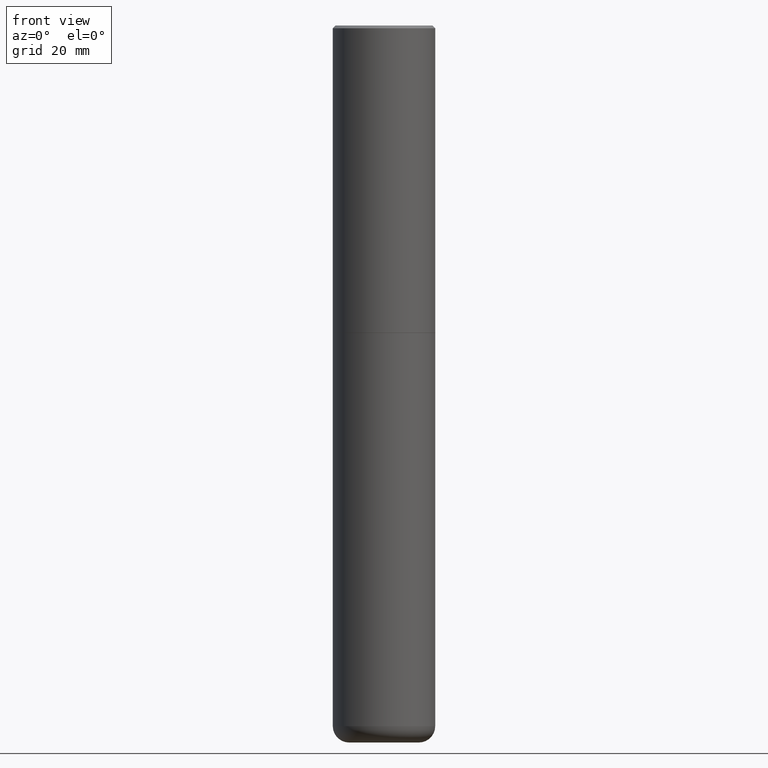
[diagram: clean part render]
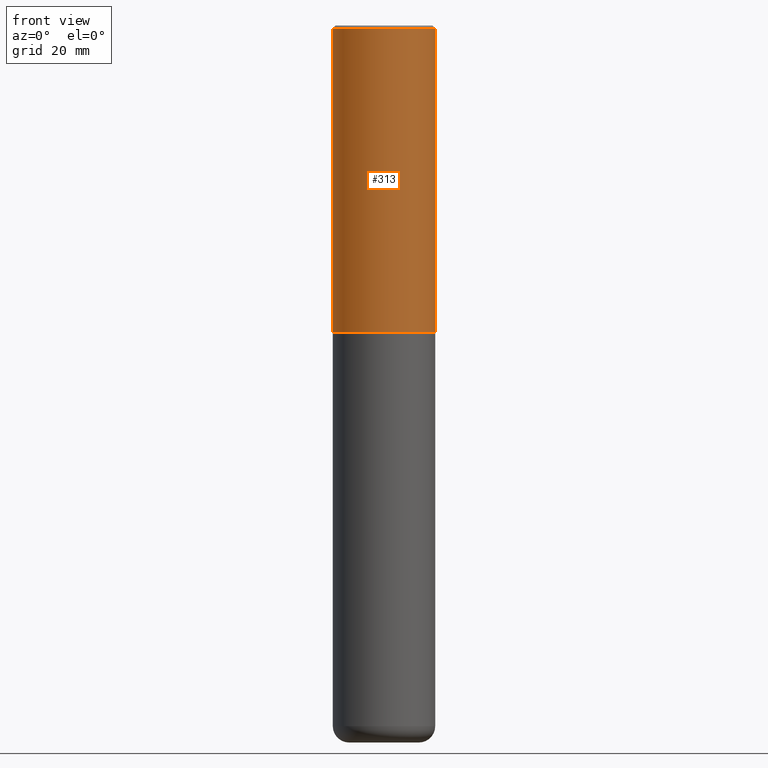
[diagram: same view with one face highlighted and labeled with its STEP entity id]
A machine part, front view. The second image highlights one B-rep face of the part: STEP entity #313.
In plain terms, the highlighted cylindrical surface (partial cylindrical patch) has radius 9.525 mm, axis along (-0, 0, 1).
Its self-contained STEP definition (entity closure, byte-faithful):
#7 = CIRCLE ( 'NONE', #214, 0.3750000000000001110 ) ;
#9 = EDGE_CURVE ( 'NONE', #363, #81, #156, .T. ) ;
#16 = DIRECTION ( 'NONE',  ( -2.445468806185136597E-29, 3.491481338843145583E-15, 1.000000000000000000 ) ) ;
#19 = VECTOR ( 'NONE', #87, 39.37007874015748143 ) ;
#24 = CYLINDRICAL_SURFACE ( 'NONE', #388, 0.3750000000000002220 ) ;
#38 = VERTEX_POINT ( 'NONE', #223 ) ;
#47 = LINE ( 'NONE', #283, #19 ) ;
#81 = VERTEX_POINT ( 'NONE', #340 ) ;
#87 = DIRECTION ( 'NONE',  ( -2.445468806185136877E-29, 3.491481338843145188E-15, 1.000000000000000000 ) ) ;
#97 = EDGE_CURVE ( 'NONE', #38, #159, #7, .T. ) ;
#102 = EDGE_CURVE ( 'NONE', #81, #159, #47, .T. ) ;
#118 = CARTESIAN_POINT ( 'NONE',  ( 4.890937612370294178E-31, -6.982962677686321191E-17, -0.02000000000000008715 ) ) ;
#122 = DIRECTION ( 'NONE',  ( 1.000000000000000000, -6.982962677686266711E-15, 4.876176775795935793E-29 ) ) ;
#123 = CARTESIAN_POINT ( 'NONE',  ( 5.499859345110371740E-29, -7.852341531058233864E-15, -2.249000000000000110 ) ) ;
#125 = DIRECTION ( 'NONE',  ( 1.000000000000000000, -6.982962677686267499E-15, 0.000000000000000000 ) ) ;
#156 = CIRCLE ( 'NONE', #310, 0.3750000000000002776 ) ;
#159 = VERTEX_POINT ( 'NONE', #198 ) ;
#160 = FACE_OUTER_BOUND ( 'NONE', #190, .T. ) ;
#180 = ORIENTED_EDGE ( 'NONE', *, *, #102, .T. ) ;
#186 = CARTESIAN_POINT ( 'NONE',  ( 0.000000000000000000, 0.000000000000000000, 0.000000000000000000 ) ) ;
#190 = EDGE_LOOP ( 'NONE', ( #253, #312, #180, #403 ) ) ;
#198 = CARTESIAN_POINT ( 'NONE',  ( 0.3750000000000001110, -2.642516375941188423E-15, -0.02000000000000008715 ) ) ;
#203 = LINE ( 'NONE', #206, #414 ) ;
#206 = CARTESIAN_POINT ( 'NONE',  ( -0.3750000000000002220, 2.664535259100377275E-15, -1.844600658845590719E-29 ) ) ;
#214 = AXIS2_PLACEMENT_3D ( 'NONE', #118, #250, #371 ) ;
#223 = CARTESIAN_POINT ( 'NONE',  ( -0.3750000000000001110, 2.548781377355487113E-15, -0.02000000000000008715 ) ) ;
#250 = DIRECTION ( 'NONE',  ( -2.445468806185136597E-29, 3.491481338843145583E-15, 1.000000000000000000 ) ) ;
#253 = ORIENTED_EDGE ( 'NONE', *, *, #392, .F. ) ;
#283 = CARTESIAN_POINT ( 'NONE',  ( 0.3750000000000002220, -2.618611004132351594E-15, 1.828566290923477043E-29 ) ) ;
#310 = AXIS2_PLACEMENT_3D ( 'NONE', #123, #16, #125 ) ;
#312 = ORIENTED_EDGE ( 'NONE', *, *, #9, .T. ) ;
#313 = ADVANCED_FACE ( 'NONE', ( #160 ), #24, .T. ) ;
#324 = CARTESIAN_POINT ( 'NONE',  ( -0.3750000000000002776, -1.296550319817170517E-15, -2.249000000000000110 ) ) ;
#329 = DIRECTION ( 'NONE',  ( -2.445468806185136877E-29, 3.491481338843145188E-15, 1.000000000000000000 ) ) ;
#340 = CARTESIAN_POINT ( 'NONE',  ( 0.3750000000000002776, -1.047095253519058704E-14, -2.249000000000000110 ) ) ;
#363 = VERTEX_POINT ( 'NONE', #324 ) ;
#371 = DIRECTION ( 'NONE',  ( 1.000000000000000000, -6.982962677686265922E-15, 0.000000000000000000 ) ) ;
#388 = AXIS2_PLACEMENT_3D ( 'NONE', #186, #405, #122 ) ;
#392 = EDGE_CURVE ( 'NONE', #363, #38, #203, .T. ) ;
#403 = ORIENTED_EDGE ( 'NONE', *, *, #97, .F. ) ;
#405 = DIRECTION ( 'NONE',  ( -2.445468806185136597E-29, 3.491481338843145583E-15, 1.000000000000000000 ) ) ;
#414 = VECTOR ( 'NONE', #329, 39.37007874015748143 ) ;